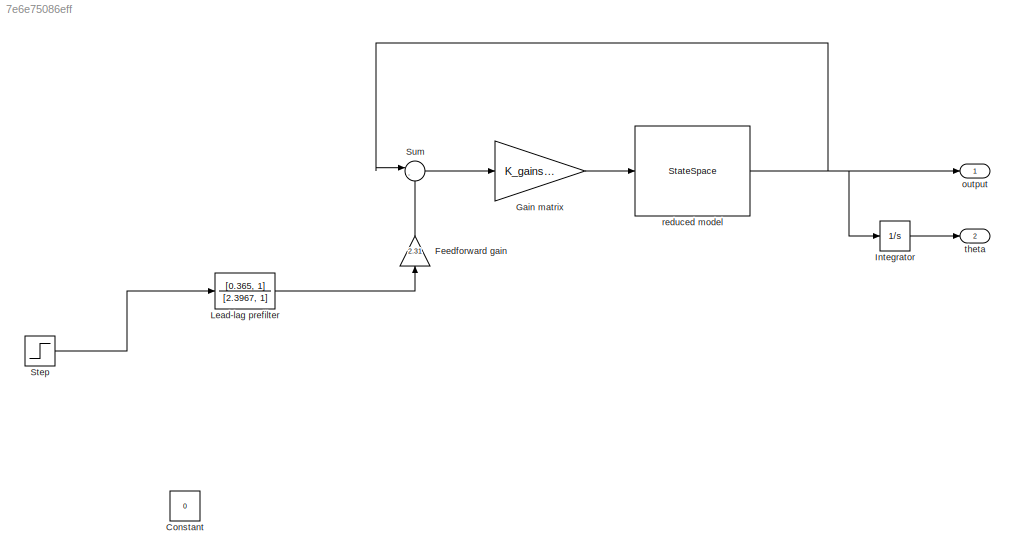
MODEL slx_7e6e75086eff
KIND model
CONFIG AbsTol = auto
CONFIG EnableMultiTasking = off
CONFIG FixedStep = auto
CONFIG MaxStep = auto
CONFIG MinStep = auto
CONFIG RelTol = 1e-3
CONFIG SampleTimeConstraint = Unconstrained
CONFIG SolverName = VariableStepAuto
CONFIG StartTime = 0.0
CONFIG StopTime = 7
BLOCK [TransferFcn]  Lead-lag prefilter
  Denominator = [2.3967, 1]
  Numerator = [0.365, 1]
BLOCK [Constant] Constant
  Value = 0
BLOCK [Gain] Feedforward gain
  Gain = 2.31
  Multiplication = Matrix(K*u)
  NameLocation = right
BLOCK [Gain] Gain matrix
  Gain = K_gains_sched / 57.2958
  Multiplication = Matrix(K*u)
  NameLocation = top
BLOCK [Integrator] Integrator
  Ports = [1, 1]
BLOCK [Step] Step
  OutDataTypeStr = Inherit: Inherit via back propagation
  SampleTime = 0
  Time = 0
BLOCK [Sum] Sum
  Inputs = |-+
  NameLocation = top
  Ports = [2, 1]
BLOCK [Outport] output
BLOCK [StateSpace] reduced model
  A = A_g
  B = B_g
  C = C_g
  D = D_g
  InitialCondition = 0
  Ports = [1, 1]
BLOCK [Outport] theta
  Port = 2
LINE  Lead-lag prefilter:1 -> Feedforward gain:1
LINE Feedforward gain:1 -> Sum:2
LINE Gain matrix:1 -> reduced model:1
LINE Integrator:1 -> theta:1
LINE Step:1 ->  Lead-lag prefilter:1
LINE Sum:1 -> Gain matrix:1
NET reduced model:1 -> Integrator:1, Sum:1, output:1
note: NET lines group one-source signal fan-out (src -> all destinations, sorted); 1:1 wires keep LINE
